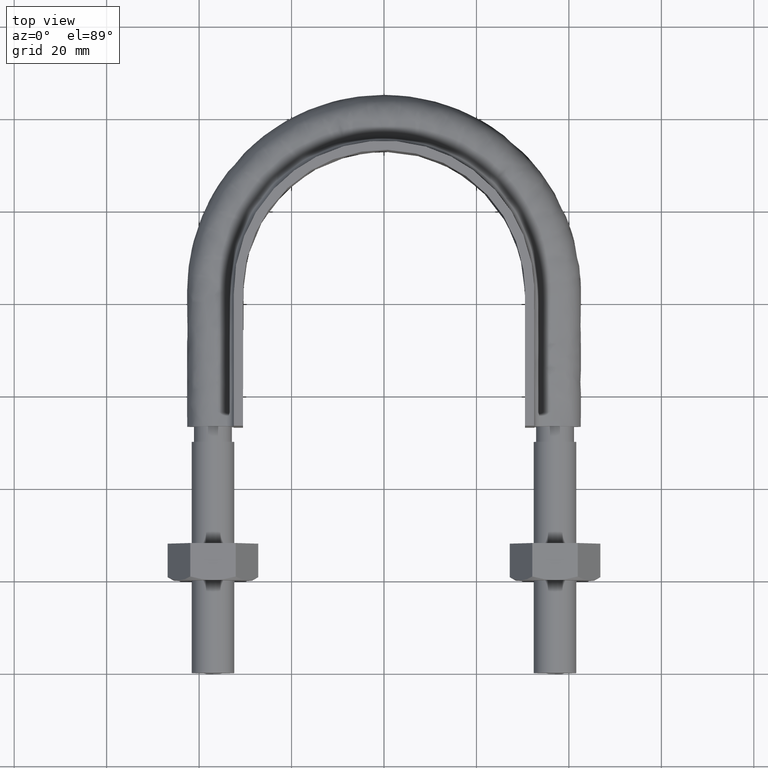
[diagram: clean part render]
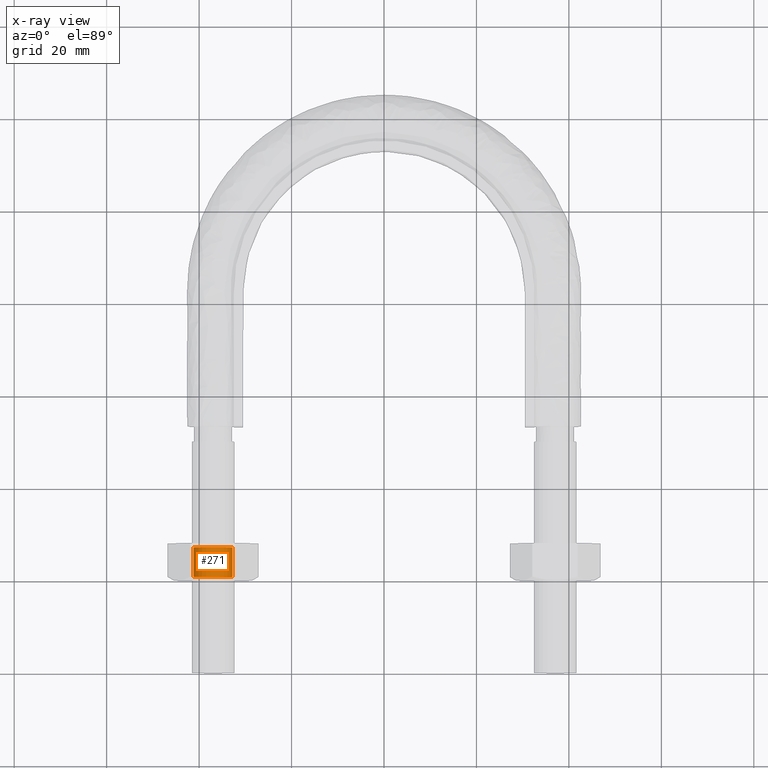
[diagram: x-ray — body ghosted, one internal face saturated and labeled with its STEP entity id]
A machine part, top view, then the same camera in x-ray: the body is ghosted and one INTERNAL B-rep face — a face not visible from any outside direction — is saturated and labeled: STEP entity #271.
In plain terms, the highlighted cylindrical surface (bore or boss wall) has radius 4.188 mm, axis along (0, 1, -0).
Its self-contained STEP definition (entity closure, byte-faithful):
#271 = ADVANCED_FACE( '', ( #414, #415 ), #416, .F. );
#414 = FACE_OUTER_BOUND( '', #1411, .T. );
#415 = FACE_OUTER_BOUND( '', #1412, .T. );
#416 = CYLINDRICAL_SURFACE( '', #1413, 4.18800000000000 );
#1411 = EDGE_LOOP( '', ( #1825 ) );
#1412 = EDGE_LOOP( '', ( #1826 ) );
#1413 = AXIS2_PLACEMENT_3D( '', #1827, #1828, #1829 );
#1825 = ORIENTED_EDGE( '', *, *, #2102, .F. );
#1826 = ORIENTED_EDGE( '', *, *, #2071, .T. );
#1827 = CARTESIAN_POINT( '', ( -37.0000000000000, 28.0000000000000, -1.97964474674128E-015 ) );
#1828 = DIRECTION( '', ( 2.44921270764475E-016, 1.00000000000000, -6.12303176911193E-017 ) );
#1829 = DIRECTION( '', ( -0.866025403784439, 1.81492883563643E-016, -0.500000000000000 ) );
#2071 = EDGE_CURVE( '', #2271, #2271, #2272, .T. );
#2102 = EDGE_CURVE( '', #2317, #2317, #2318, .F. );
#2271 = VERTEX_POINT( '', #2810 );
#2272 = CIRCLE( '', #2811, 4.18800000000000 );
#2317 = VERTEX_POINT( '', #2892 );
#2318 = CIRCLE( '', #2893, 4.18800000000000 );
#2810 = CARTESIAN_POINT( '', ( -41.1880000000000, 27.1880000000000, -1.92992572877610E-015 ) );
#2811 = AXIS2_PLACEMENT_3D( '', #3149, #3150, #3151 );
#2892 = CARTESIAN_POINT( '', ( -32.8120000000000, 20.8120000000000, -1.53952122317752E-015 ) );
#2893 = AXIS2_PLACEMENT_3D( '', #3205, #3206, #3207 );
#3149 = CARTESIAN_POINT( '', ( -37.0000000000000, 27.1880000000000, -1.92992572877610E-015 ) );
#3150 = DIRECTION( '', ( 2.44921270764475E-016, 1.00000000000000, -6.12303176911193E-017 ) );
#3151 = DIRECTION( '', ( -1.00000000000000, 2.44921270764475E-016, 0.000000000000000 ) );
#3205 = CARTESIAN_POINT( '', ( -37.0000000000000, 20.8120000000000, -1.53952122317752E-015 ) );
#3206 = DIRECTION( '', ( -2.44921270764475E-016, -1.00000000000000, 6.12303176911193E-017 ) );
#3207 = DIRECTION( '', ( 1.00000000000000, -2.44921270764475E-016, 0.000000000000000 ) );